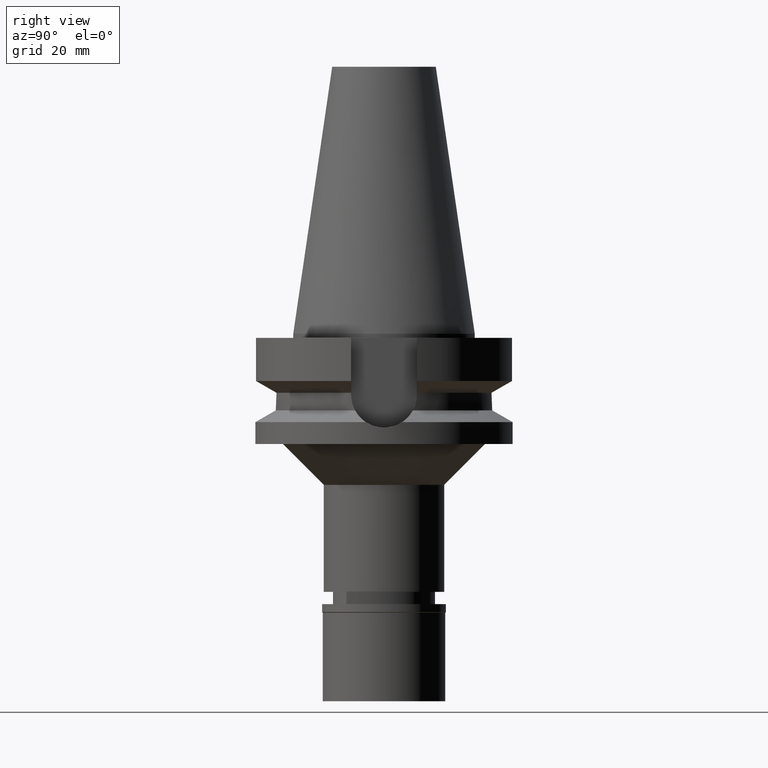
[diagram: clean part render]
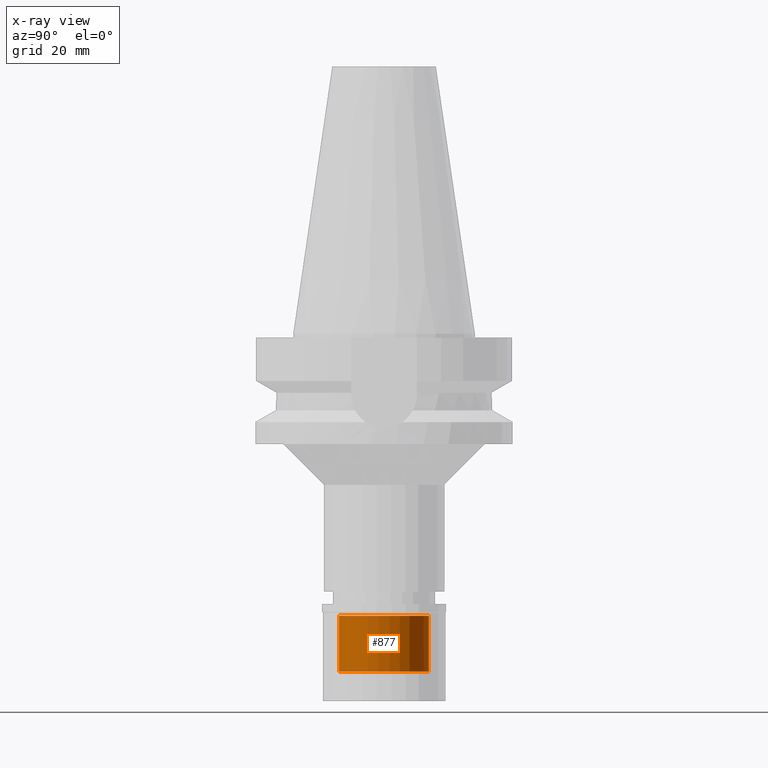
[diagram: x-ray — body ghosted, one internal face saturated and labeled with its STEP entity id]
A machine part, right view, then the same camera in x-ray: the body is ghosted and one INTERNAL B-rep face — a face not visible from any outside direction — is saturated and labeled: STEP entity #877.
In plain terms, the highlighted cylindrical surface (partial cylindrical patch) has radius 11 mm, axis along (0, 0, -1).
Its self-contained STEP definition (entity closure, byte-faithful):
#48 = CIRCLE ( 'NONE', #2778, 11.00000000000000000 ) ;
#100 = ORIENTED_EDGE ( 'NONE', *, *, #2171, .T. ) ;
#114 = CARTESIAN_POINT ( 'NONE',  ( 0.0000000000000000000, 0.0000000000000000000, -2.899999999999999911 ) ) ;
#179 = CARTESIAN_POINT ( 'NONE',  ( 0.0000000000000000000, 0.0000000000000000000, -16.50000000000000000 ) ) ;
#204 = CIRCLE ( 'NONE', #2319, 11.00000000000000000 ) ;
#227 = CARTESIAN_POINT ( 'NONE',  ( 0.0000000000000000000, -11.00000000000000000, -16.50000000000000000 ) ) ;
#404 = EDGE_LOOP ( 'NONE', ( #2887, #100, #2254, #2702 ) ) ;
#594 = EDGE_CURVE ( 'NONE', #2383, #1195, #2315, .T. ) ;
#649 = CARTESIAN_POINT ( 'NONE',  ( 0.0000000000000000000, 11.00000000000000000, -16.50000000000000000 ) ) ;
#668 = AXIS2_PLACEMENT_3D ( 'NONE', #1773, #1791, #1667 ) ;
#877 = ADVANCED_FACE ( 'NONE', ( #1761 ), #1494, .F. ) ;
#1154 = CARTESIAN_POINT ( 'NONE',  ( 0.0000000000000000000, -11.00000000000000000, -2.899999999999999911 ) ) ;
#1195 = VERTEX_POINT ( 'NONE', #1581 ) ;
#1196 = DIRECTION ( 'NONE',  ( 0.0000000000000000000, 0.0000000000000000000, 1.000000000000000000 ) ) ;
#1227 = LINE ( 'NONE', #227, #2134 ) ;
#1335 = DIRECTION ( 'NONE',  ( 0.0000000000000000000, -1.000000000000000000, 0.0000000000000000000 ) ) ;
#1494 = CYLINDRICAL_SURFACE ( 'NONE', #668, 11.00000000000000000 ) ;
#1507 = VERTEX_POINT ( 'NONE', #1154 ) ;
#1581 = CARTESIAN_POINT ( 'NONE',  ( 0.0000000000000000000, 11.00000000000000000, -2.899999999999999911 ) ) ;
#1667 = DIRECTION ( 'NONE',  ( 0.0000000000000000000, -1.000000000000000000, 0.0000000000000000000 ) ) ;
#1729 = EDGE_CURVE ( 'NONE', #1507, #1195, #204, .T. ) ;
#1761 = FACE_OUTER_BOUND ( 'NONE', #404, .T. ) ;
#1773 = CARTESIAN_POINT ( 'NONE',  ( 0.0000000000000000000, 0.0000000000000000000, 0.0000000000000000000 ) ) ;
#1791 = DIRECTION ( 'NONE',  ( 0.0000000000000000000, 0.0000000000000000000, -1.000000000000000000 ) ) ;
#1826 = DIRECTION ( 'NONE',  ( 0.0000000000000000000, 0.0000000000000000000, 1.000000000000000000 ) ) ;
#2095 = DIRECTION ( 'NONE',  ( 0.0000000000000000000, 0.0000000000000000000, -1.000000000000000000 ) ) ;
#2134 = VECTOR ( 'NONE', #1196, 1000.000000000000000 ) ;
#2171 = EDGE_CURVE ( 'NONE', #2210, #1507, #1227, .T. ) ;
#2210 = VERTEX_POINT ( 'NONE', #2230 ) ;
#2230 = CARTESIAN_POINT ( 'NONE',  ( 0.0000000000000000000, -11.00000000000000000, -16.50000000000000000 ) ) ;
#2245 = CARTESIAN_POINT ( 'NONE',  ( 0.0000000000000000000, 11.00000000000000000, -16.50000000000000000 ) ) ;
#2254 = ORIENTED_EDGE ( 'NONE', *, *, #1729, .T. ) ;
#2315 = LINE ( 'NONE', #649, #3038 ) ;
#2319 = AXIS2_PLACEMENT_3D ( 'NONE', #114, #1826, #1335 ) ;
#2383 = VERTEX_POINT ( 'NONE', #2245 ) ;
#2451 = EDGE_CURVE ( 'NONE', #2383, #2210, #48, .T. ) ;
#2702 = ORIENTED_EDGE ( 'NONE', *, *, #594, .F. ) ;
#2778 = AXIS2_PLACEMENT_3D ( 'NONE', #179, #2095, #3085 ) ;
#2887 = ORIENTED_EDGE ( 'NONE', *, *, #2451, .T. ) ;
#3038 = VECTOR ( 'NONE', #3076, 1000.000000000000000 ) ;
#3076 = DIRECTION ( 'NONE',  ( 0.0000000000000000000, 0.0000000000000000000, 1.000000000000000000 ) ) ;
#3085 = DIRECTION ( 'NONE',  ( 0.0000000000000000000, 1.000000000000000000, 0.0000000000000000000 ) ) ;